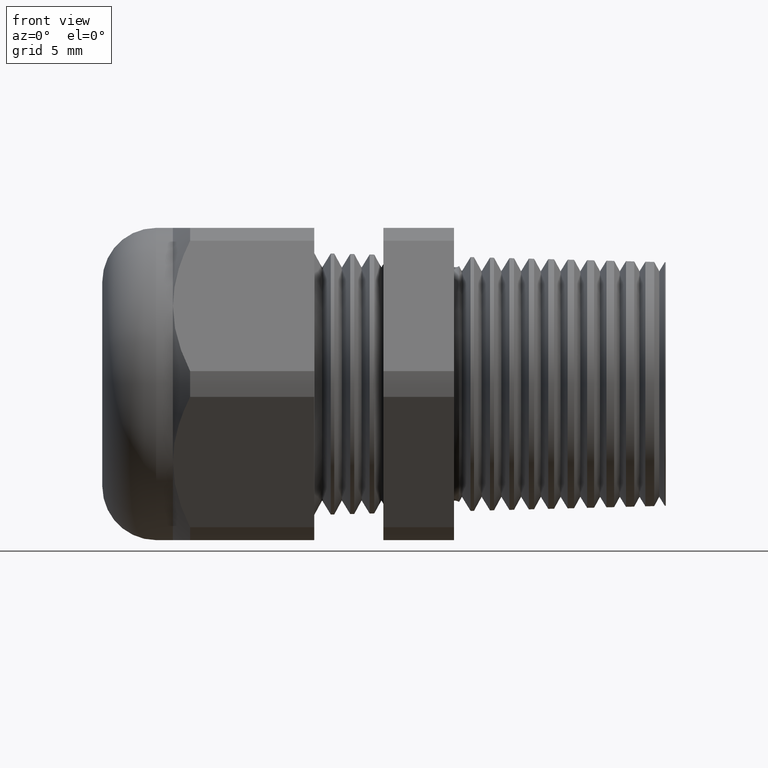
[diagram: clean part render]
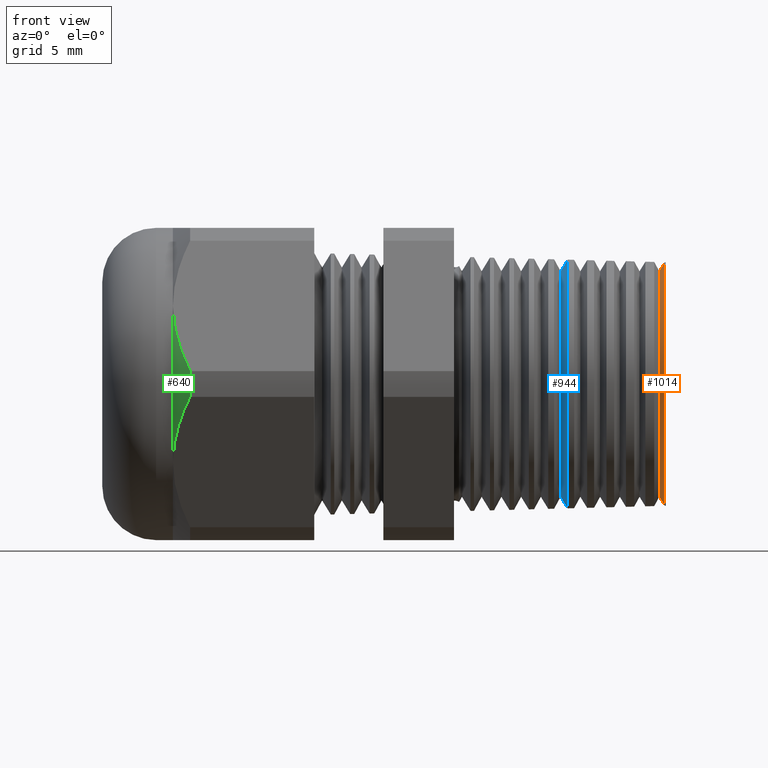
[diagram: same view with three faces highlighted in distinct colors, each labeled with its STEP entity id]
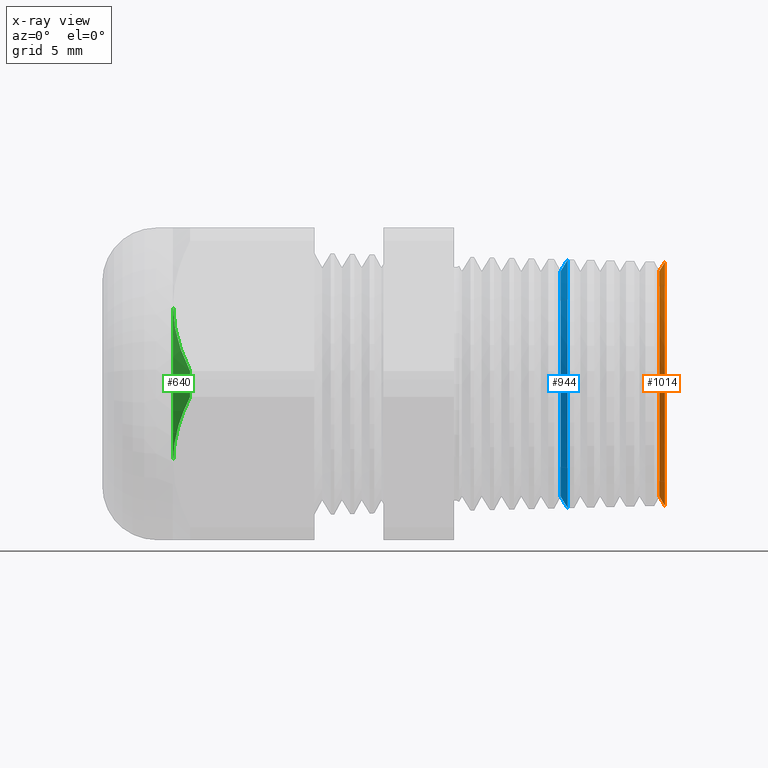
[diagram: x-ray of the same camera — body ghosted, the three highlighted faces saturated]
A machine part, front view with three faces highlighted in distinct colors.
The next image is the same camera in x-ray (body ghosted, the three faces saturated) — at least one of them is partly hidden behind the body in this view.
Their STEP definitions:

[orange] entity #1014 — the highlighted conical surface has half-angle 58.5 deg.
#38 = EDGE_CURVE ( 'NONE', #150, #133, #1312, .T. ) ;
#133 = VERTEX_POINT ( 'NONE', #1502 ) ;
#148 = VERTEX_POINT ( 'NONE', #1540 ) ;
#149 = EDGE_CURVE ( 'NONE', #153, #148, #1539, .T. ) ;
#150 = VERTEX_POINT ( 'NONE', #1535 ) ;
#153 = VERTEX_POINT ( 'NONE', #1593 ) ;
#437 = EDGE_CURVE ( 'NONE', #133, #148, #2153, .T. ) ;
#1011 = EDGE_CURVE ( 'NONE', #153, #150, #3077, .T. ) ;
#1014 = ADVANCED_FACE ( 'NONE', ( #3078 ), #3134, .T. ) ;
#1015 = EDGE_LOOP ( 'NONE', ( #1016, #1017, #1018, #1019 ) ) ;
#1016 = ORIENTED_EDGE ( 'NONE', *, *, #149, .F. ) ;
#1017 = ORIENTED_EDGE ( 'NONE', *, *, #1011, .T. ) ;
#1018 = ORIENTED_EDGE ( 'NONE', *, *, #38, .T. ) ;
#1019 = ORIENTED_EDGE ( 'NONE', *, *, #437, .T. ) ;
#1312 = LINE ( 'NONE', #1370, #1369 ) ;
#1368 = DIRECTION ( 'NONE',  ( 0.5224985647159468000, 0.0000000000000000000, -0.8526401643540935100 ) ) ;
#1369 = VECTOR ( 'NONE', #1368, 39.37007874015748100 ) ;
#1370 = CARTESIAN_POINT ( 'NONE',  ( 0.2620390190945656700, 0.0000000000000000000, -0.3142111000480302100 ) ) ;
#1502 = CARTESIAN_POINT ( 'NONE',  ( 0.2774858670443526900, 4.156672467963078700E-017, -0.3394180649357117500 ) ) ;
#1535 = CARTESIAN_POINT ( 'NONE',  ( 0.2620390190945656700, 4.007062973728148700E-017, -0.3142111000480302100 ) ) ;
#1536 = DIRECTION ( 'NONE',  ( 0.5224985647159468000, 1.044183048100713800E-016, 0.8526401643540935100 ) ) ;
#1537 = VECTOR ( 'NONE', #1536, 39.37007874015748100 ) ;
#1538 = CARTESIAN_POINT ( 'NONE',  ( 0.2620390190945656700, 3.847976179303889700E-017, 0.3142111000480302100 ) ) ;
#1539 = LINE ( 'NONE', #1538, #1537 ) ;
#1540 = CARTESIAN_POINT ( 'NONE',  ( 0.2774858670443526900, 0.0000000000000000000, 0.3394180649357117500 ) ) ;
#1593 = CARTESIAN_POINT ( 'NONE',  ( 0.2620390190945656700, 0.0000000000000000000, 0.3142111000480302100 ) ) ;
#2149 = DIRECTION ( 'NONE',  ( 0.0000000000000000000, 0.0000000000000000000, -1.000000000000000000 ) ) ;
#2150 = DIRECTION ( 'NONE',  ( -1.000000000000000000, 0.0000000000000000000, 0.0000000000000000000 ) ) ;
#2151 = CARTESIAN_POINT ( 'NONE',  ( 0.2774858670443526900, 0.0000000000000000000, 0.0000000000000000000 ) ) ;
#2152 = AXIS2_PLACEMENT_3D ( 'NONE', #2151, #2150, #2149 ) ;
#2153 = CIRCLE ( 'NONE', #2152, 0.3394180649357118100 ) ;
#3074 = DIRECTION ( 'NONE',  ( 1.000000000000000000, 0.0000000000000000000, 0.0000000000000000000 ) ) ;
#3075 = CARTESIAN_POINT ( 'NONE',  ( 0.2620390190945656700, 0.0000000000000000000, 0.0000000000000000000 ) ) ;
#3076 = AXIS2_PLACEMENT_3D ( 'NONE', #3075, #3074, #3137 ) ;
#3077 = CIRCLE ( 'NONE', #3076, 0.3142111000480302100 ) ;
#3078 = FACE_OUTER_BOUND ( 'NONE', #1015, .T. ) ;
#3131 = DIRECTION ( 'NONE',  ( 0.0000000000000000000, 0.0000000000000000000, -1.000000000000000000 ) ) ;
#3132 = DIRECTION ( 'NONE',  ( 1.000000000000000000, 0.0000000000000000000, 0.0000000000000000000 ) ) ;
#3133 = AXIS2_PLACEMENT_3D ( 'NONE', #3136, #3132, #3131 ) ;
#3134 = CONICAL_SURFACE ( 'NONE', #3133, 0.3142111000480302100, 1.021017612416685200 ) ;
#3136 = CARTESIAN_POINT ( 'NONE',  ( 0.2620390190945656700, 0.0000000000000000000, 0.0000000000000000000 ) ) ;
#3137 = DIRECTION ( 'NONE',  ( 0.0000000000000000000, 0.0000000000000000000, -1.000000000000000000 ) ) ;

[blue] entity #944 — the highlighted conical surface has half-angle 58.5 deg.
#270 = VERTEX_POINT ( 'NONE', #1795 ) ;
#271 = VERTEX_POINT ( 'NONE', #1794 ) ;
#276 = VERTEX_POINT ( 'NONE', #1843 ) ;
#279 = EDGE_CURVE ( 'NONE', #276, #271, #1838, .T. ) ;
#286 = EDGE_CURVE ( 'NONE', #287, #270, #1832, .T. ) ;
#287 = VERTEX_POINT ( 'NONE', #1824 ) ;
#941 = EDGE_CURVE ( 'NONE', #287, #276, #2978, .T. ) ;
#944 = ADVANCED_FACE ( 'NONE', ( #3035 ), #3034, .T. ) ;
#945 = EDGE_LOOP ( 'NONE', ( #999, #1000, #1001, #1002 ) ) ;
#999 = ORIENTED_EDGE ( 'NONE', *, *, #286, .F. ) ;
#1000 = ORIENTED_EDGE ( 'NONE', *, *, #941, .T. ) ;
#1001 = ORIENTED_EDGE ( 'NONE', *, *, #279, .T. ) ;
#1002 = ORIENTED_EDGE ( 'NONE', *, *, #3903, .T. ) ;
#1794 = CARTESIAN_POINT ( 'NONE',  ( 0.006829030549056694900, 4.243468069195161300E-017, -0.3465054636283398900 ) ) ;
#1795 = CARTESIAN_POINT ( 'NONE',  ( 0.006829030549056694900, 0.0000000000000000000, 0.3465054636283398900 ) ) ;
#1824 = CARTESIAN_POINT ( 'NONE',  ( -0.01296098090543431000, 0.0000000000000000000, 0.3142111000480302100 ) ) ;
#1825 = DIRECTION ( 'NONE',  ( 0.5224985647159468000, 1.044183048100713800E-016, 0.8526401643540935100 ) ) ;
#1826 = VECTOR ( 'NONE', #1825, 39.37007874015748100 ) ;
#1827 = CARTESIAN_POINT ( 'NONE',  ( -0.01296098090543431000, 3.847976179303889700E-017, 0.3142111000480302100 ) ) ;
#1832 = LINE ( 'NONE', #1827, #1826 ) ;
#1835 = DIRECTION ( 'NONE',  ( 0.5224985647159468000, 0.0000000000000000000, -0.8526401643540935100 ) ) ;
#1836 = VECTOR ( 'NONE', #1835, 39.37007874015748100 ) ;
#1837 = CARTESIAN_POINT ( 'NONE',  ( -0.01296098090543431000, 0.0000000000000000000, -0.3142111000480302100 ) ) ;
#1838 = LINE ( 'NONE', #1837, #1836 ) ;
#1843 = CARTESIAN_POINT ( 'NONE',  ( -0.01296098090543431000, 4.051793132390285600E-017, -0.3142111000480302100 ) ) ;
#2976 = CARTESIAN_POINT ( 'NONE',  ( -0.01296098090543431000, 0.0000000000000000000, 0.0000000000000000000 ) ) ;
#2977 = AXIS2_PLACEMENT_3D ( 'NONE', #2976, #3037, #3036 ) ;
#2978 = CIRCLE ( 'NONE', #2977, 0.3142111000480302100 ) ;
#3029 = DIRECTION ( 'NONE',  ( 0.0000000000000000000, 0.0000000000000000000, -1.000000000000000000 ) ) ;
#3030 = DIRECTION ( 'NONE',  ( 1.000000000000000000, 0.0000000000000000000, 0.0000000000000000000 ) ) ;
#3031 = CARTESIAN_POINT ( 'NONE',  ( -0.01296098090543431000, 0.0000000000000000000, 0.0000000000000000000 ) ) ;
#3032 = AXIS2_PLACEMENT_3D ( 'NONE', #3031, #3030, #3029 ) ;
#3034 = CONICAL_SURFACE ( 'NONE', #3032, 0.3142111000480302100, 1.021017612416685200 ) ;
#3035 = FACE_OUTER_BOUND ( 'NONE', #945, .T. ) ;
#3036 = DIRECTION ( 'NONE',  ( 0.0000000000000000000, 0.0000000000000000000, -1.000000000000000000 ) ) ;
#3037 = DIRECTION ( 'NONE',  ( 1.000000000000000000, 0.0000000000000000000, 0.0000000000000000000 ) ) ;
#3454 = DIRECTION ( 'NONE',  ( 0.0000000000000000000, 0.0000000000000000000, -1.000000000000000000 ) ) ;
#3455 = DIRECTION ( 'NONE',  ( -1.000000000000000000, 0.0000000000000000000, 0.0000000000000000000 ) ) ;
#3456 = AXIS2_PLACEMENT_3D ( 'NONE', #3462, #3455, #3454 ) ;
#3457 = CIRCLE ( 'NONE', #3456, 0.3465054636283400000 ) ;
#3462 = CARTESIAN_POINT ( 'NONE',  ( 0.006829030549056694900, 0.0000000000000000000, 0.0000000000000000000 ) ) ;
#3903 = EDGE_CURVE ( 'NONE', #271, #270, #3457, .T. ) ;

[green] entity #640 — the highlighted conical surface has half-angle 45 deg.
#421 = EDGE_CURVE ( 'NONE', #827, #799, #2128, .T. ) ;
#585 = EDGE_LOOP ( 'NONE', ( #641, #642, #643, #644 ) ) ;
#640 = ADVANCED_FACE ( 'NONE', ( #2449 ), #2446, .T. ) ;
#641 = ORIENTED_EDGE ( 'NONE', *, *, #802, .F. ) ;
#642 = ORIENTED_EDGE ( 'NONE', *, *, #819, .F. ) ;
#643 = ORIENTED_EDGE ( 'NONE', *, *, #421, .T. ) ;
#644 = ORIENTED_EDGE ( 'NONE', *, *, #793, .F. ) ;
#729 = VERTEX_POINT ( 'NONE', #2613 ) ;
#789 = VERTEX_POINT ( 'NONE', #2725 ) ;
#793 = EDGE_CURVE ( 'NONE', #729, #799, #2717, .T. ) ;
#799 = VERTEX_POINT ( 'NONE', #2759 ) ;
#802 = EDGE_CURVE ( 'NONE', #789, #729, #2750, .T. ) ;
#819 = EDGE_CURVE ( 'NONE', #827, #789, #2819, .T. ) ;
#827 = VERTEX_POINT ( 'NONE', #2805 ) ;
#2124 = DIRECTION ( 'NONE',  ( 0.0000000000000000000, 0.0000000000000000000, -1.000000000000000000 ) ) ;
#2125 = DIRECTION ( 'NONE',  ( 1.000000000000000000, 0.0000000000000000000, 0.0000000000000000000 ) ) ;
#2126 = CARTESIAN_POINT ( 'NONE',  ( -1.093149606299212500, 0.0000000000000000000, 0.0000000000000000000 ) ) ;
#2127 = AXIS2_PLACEMENT_3D ( 'NONE', #2126, #2125, #2124 ) ;
#2128 = CIRCLE ( 'NONE', #2127, 0.4350000000000000000 ) ;
#2443 = DIRECTION ( 'NONE',  ( 0.0000000000000000000, 0.0000000000000000000, 1.000000000000000000 ) ) ;
#2444 = DIRECTION ( 'NONE',  ( 1.000000000000000000, 0.0000000000000000000, 0.0000000000000000000 ) ) ;
#2445 = AXIS2_PLACEMENT_3D ( 'NONE', #2448, #2444, #2443 ) ;
#2446 = CONICAL_SURFACE ( 'NONE', #2445, 0.4349999999999999400, 0.7853981633974501700 ) ;
#2448 = CARTESIAN_POINT ( 'NONE',  ( -1.093149606299212500, 0.0000000000000000000, 0.0000000000000000000 ) ) ;
#2449 = FACE_OUTER_BOUND ( 'NONE', #585, .T. ) ;
#2613 = CARTESIAN_POINT ( 'NONE',  ( -1.045299606299212600, -0.4815054990391102700, -0.03600801154045380600 ) ) ;
#2705 = CARTESIAN_POINT ( 'NONE',  ( -1.093149606299212500, -0.3767210506462309000, -0.2175000000000001400 ) ) ;
#2706 = CARTESIAN_POINT ( 'NONE',  ( -1.093149606299212500, -0.3857925414957256700, -0.2017877169482786800 ) ) ;
#2707 = CARTESIAN_POINT ( 'NONE',  ( -1.091984909731641900, -0.3949608729582815300, -0.1859077010345000500 ) ) ;
#2708 = CARTESIAN_POINT ( 'NONE',  ( -1.087538079418565600, -0.4128791740769161000, -0.1548722931117065500 ) ) ;
#2709 = CARTESIAN_POINT ( 'NONE',  ( -1.084264781596877800, -0.4217074978350991400, -0.1395811878168656300 ) ) ;
#2710 = CARTESIAN_POINT ( 'NONE',  ( -1.071729709221732600, -0.4478541282806172700, -0.09429389543850141800 ) ) ;
#2711 = CARTESIAN_POINT ( 'NONE',  ( -1.059769412452236100, -0.4648361697441962300, -0.06488013680734111600 ) ) ;
#2712 = CARTESIAN_POINT ( 'NONE',  ( -1.045299606299212600, -0.4815054990391102700, -0.03600801154045380600 ) ) ;
#2717 = B_SPLINE_CURVE_WITH_KNOTS ( 'NONE', 3,
 ( #2712, #2711, #2710, #2709, #2708, #2707, #2706, #2705 ),
 .UNSPECIFIED., .F., .F.,
 ( 4, 2, 2, 4 ),
 ( 2.483252225666341000E-007, 0.002731890542274199300, 0.004097711650800014100, 0.005463532759325830600 ),
 .UNSPECIFIED. ) ;
#2725 = CARTESIAN_POINT ( 'NONE',  ( -1.045299606299212600, -0.4815054990391102700, 0.03600801154045355600 ) ) ;
#2746 = DIRECTION ( 'NONE',  ( 0.0000000000000000000, 0.0000000000000000000, -1.000000000000000000 ) ) ;
#2747 = DIRECTION ( 'NONE',  ( 1.000000000000000000, 0.0000000000000000000, 0.0000000000000000000 ) ) ;
#2748 = CARTESIAN_POINT ( 'NONE',  ( -1.045299606299212600, 0.0000000000000000000, 0.0000000000000000000 ) ) ;
#2749 = AXIS2_PLACEMENT_3D ( 'NONE', #2748, #2747, #2746 ) ;
#2750 = CIRCLE ( 'NONE', #2749, 0.4828500000000000600 ) ;
#2759 = CARTESIAN_POINT ( 'NONE',  ( -1.093149606299212500, -0.3767210506462309000, -0.2175000000000001400 ) ) ;
#2805 = CARTESIAN_POINT ( 'NONE',  ( -1.093149606299212500, -0.3767210506462309600, 0.2174999999999998300 ) ) ;
#2811 = CARTESIAN_POINT ( 'NONE',  ( -1.045299606299212600, -0.4815054990391102700, 0.03600801154045355600 ) ) ;
#2812 = CARTESIAN_POINT ( 'NONE',  ( -1.059787336418231800, -0.4648155211958818800, 0.06491590114212428300 ) ) ;
#2813 = CARTESIAN_POINT ( 'NONE',  ( -1.071916315774384100, -0.4475652507652400600, 0.09479424597229865700 ) ) ;
#2814 = CARTESIAN_POINT ( 'NONE',  ( -1.088572233045574500, -0.4126204045939864700, 0.1553204950035889100 ) ) ;
#2815 = CARTESIAN_POINT ( 'NONE',  ( -1.093149606299212100, -0.3948515912391093500, 0.1860969825244442600 ) ) ;
#2816 = CARTESIAN_POINT ( 'NONE',  ( -1.093149606299212500, -0.3767210506462309600, 0.2174999999999998300 ) ) ;
#2819 = B_SPLINE_CURVE_WITH_KNOTS ( 'NONE', 3,
 ( #2816, #2815, #2814, #2813, #2812, #2811 ),
 .UNSPECIFIED., .F., .F.,
 ( 4, 2, 4 ),
 ( 0.005463532759325824600, 0.008193301819514681900, 0.01092307087970354100 ),
 .UNSPECIFIED. ) ;